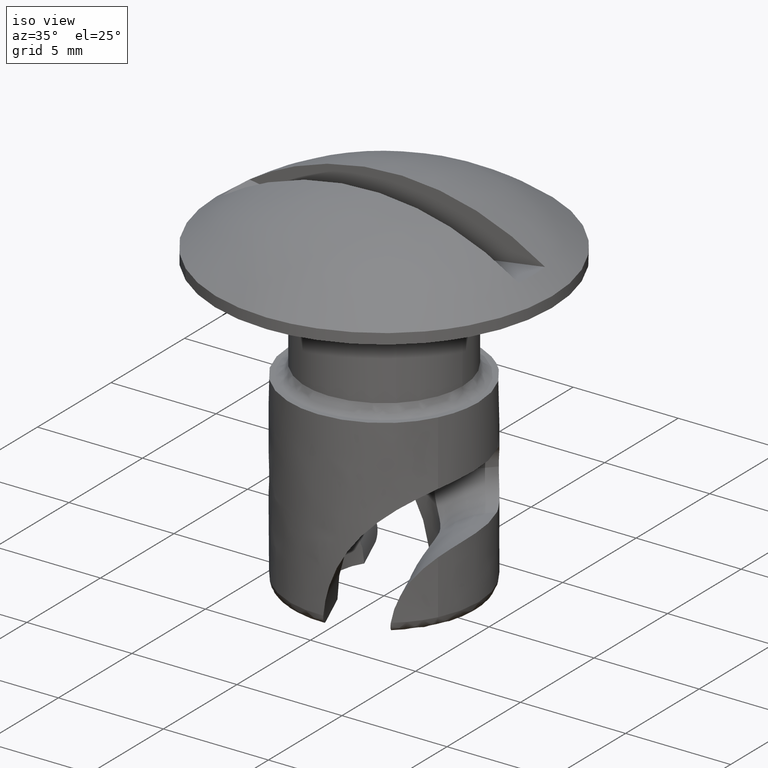
[diagram: clean part render]
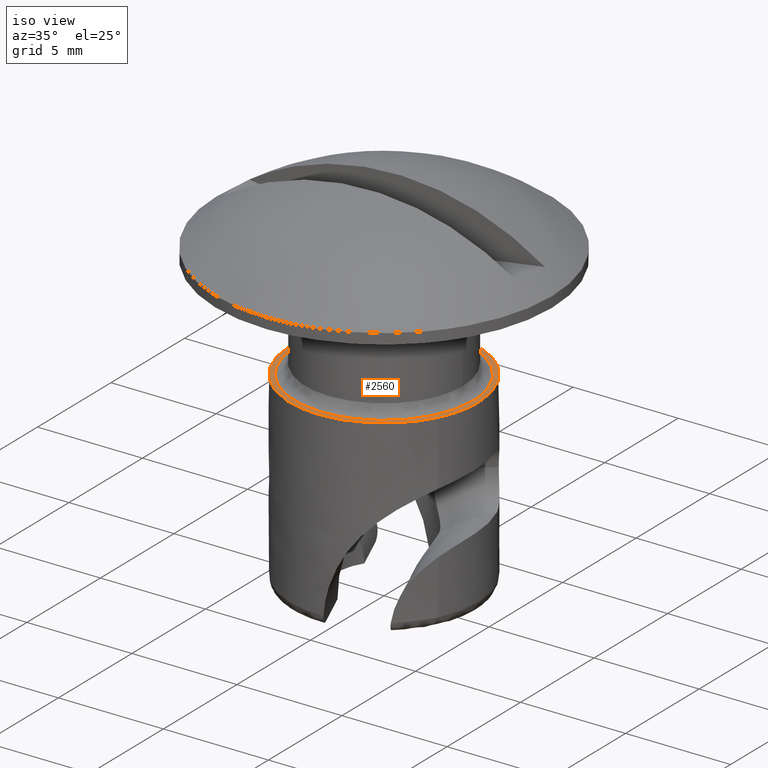
[diagram: same view with one face highlighted and labeled with its STEP entity id]
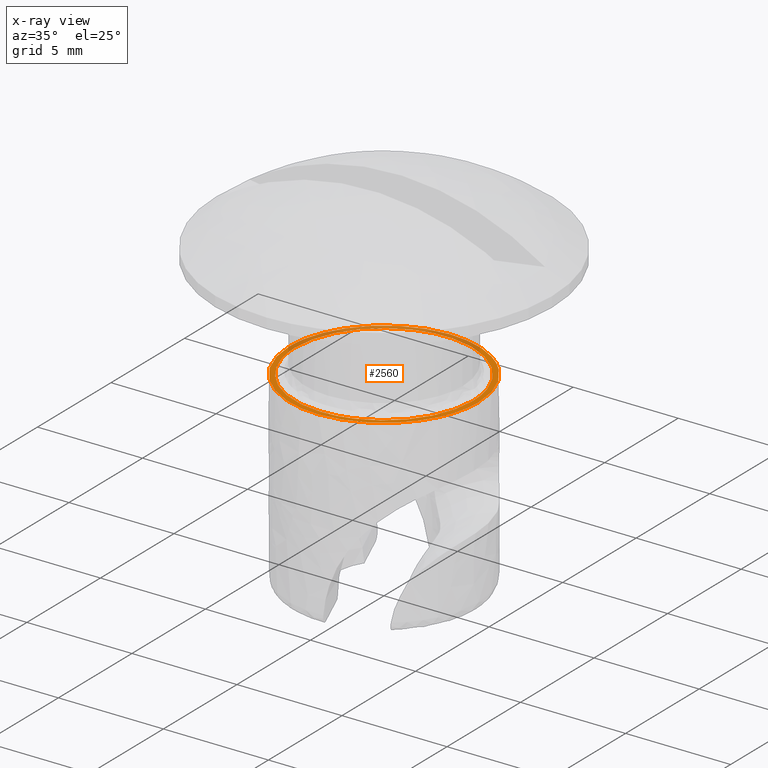
[diagram: x-ray of the same camera — body ghosted, the highlighted face saturated]
A machine part, iso view. The second image highlights one B-rep face of the part: STEP entity #2560.
The next image is the same camera in x-ray: the body ghosted, the highlighted face saturated — about 33% of this face is hidden behind the body in this view.
In plain terms, the highlighted face is a freeform B-spline surface patch.
Its self-contained STEP definition (entity closure, byte-faithful):
#915=CARTESIAN_POINT('',(4.005059613483995,-2.051706084407150,-4.999999999966261));
#916=VERTEX_POINT('',#915);
#922=CARTESIAN_POINT('',(0.000000199531659,-4.499999999999996,-5.0));
#923=VERTEX_POINT('',#922);
#924=CARTESIAN_POINT('',(0.000000199531659,-4.499999999999996,-5.0));
#925=CARTESIAN_POINT('',(0.347225374445360,-4.500084276546153,-4.999999999997077));
#926=CARTESIAN_POINT('',(0.848721989248025,-4.441649528185629,-4.999999999992856));
#927=CARTESIAN_POINT('',(1.504061849735674,-4.251109188553205,-4.999999999987324));
#928=CARTESIAN_POINT('',(2.074996128929918,-4.013541250767503,-4.999999999982569));
#929=CARTESIAN_POINT('',(2.626041094429768,-3.676684473263752,-4.999999999977807));
#930=CARTESIAN_POINT('',(3.097789590667225,-3.276863095574214,-4.999999999974009));
#931=CARTESIAN_POINT('',(3.566165735520965,-2.780476237479936,-4.999999999969860));
#932=CARTESIAN_POINT('',(3.846822333014787,-2.360779214622130,-4.999999999967666));
#933=CARTESIAN_POINT('',(4.005059613483995,-2.051706084407150,-4.999999999966261));
#934=B_SPLINE_CURVE_WITH_KNOTS('',3,(#924,#925,#926,#927,#928,#929,#930,#931,#932,#933),.UNSPECIFIED.,.F.,.U.,(4,1,1,1,1,1,1,4),(2.443718E-009,1.041650422527793,1.504608903684662,2.044726977162392,2.893471900989890,3.433589974468201,3.896548455624979,4.938198875709558),.UNSPECIFIED.);
#935=EDGE_CURVE('',#923,#916,#934,.T.);
#937=CARTESIAN_POINT('',(-4.500000000000000,0.0,-5.0));
#938=VERTEX_POINT('',#937);
#939=CARTESIAN_POINT('',(-4.500000000000000,0.0,-5.0));
#940=CARTESIAN_POINT('',(-4.500052744852380,-0.312936601427019,-5.000000000000004));
#941=CARTESIAN_POINT('',(-4.446967572574513,-0.819126354778439,-4.999999999999996));
#942=CARTESIAN_POINT('',(-4.238053745725908,-1.565165513950329,-4.999999999999992));
#943=CARTESIAN_POINT('',(-3.966683787999966,-2.162472609163638,-5.000000000000030));
#944=CARTESIAN_POINT('',(-3.612937938485601,-2.702549551415971,-4.999999999999961));
#945=CARTESIAN_POINT('',(-3.218257175802253,-3.165819933905433,-5.000000000000020));
#946=CARTESIAN_POINT('',(-2.735509821233976,-3.595341931301139,-4.999999999999965));
#947=CARTESIAN_POINT('',(-2.107516029363350,-4.001171129985579,-5.000000000000009));
#948=CARTESIAN_POINT('',(-1.409793039712561,-4.297749542585641,-5.000000000000018));
#949=CARTESIAN_POINT('',(-0.681082380088882,-4.466050230711910,-4.999999999999872));
#950=CARTESIAN_POINT('',(-0.220891309928308,-4.500010123994557,-5.000000000000269));
#951=CARTESIAN_POINT('',(0.000000199531659,-4.499999999999996,-5.0));
#952=B_SPLINE_CURVE_WITH_KNOTS('',3,(#939,#940,#941,#942,#943,#944,#945,#946,#947,#948,#949,#950,#951),.UNSPECIFIED.,.F.,.U.,(4,1,1,1,1,1,1,1,1,1,4),(0.000000011814667,0.938796935335811,1.518642999229638,2.319384982705726,2.899229292033102,3.451465284928702,4.141751430438495,4.832046372003482,5.688010521611405,6.405919597892757,7.068594671592562),.UNSPECIFIED.);
#953=EDGE_CURVE('',#938,#923,#952,.T.);
#955=CARTESIAN_POINT('',(-0.000000199531739,4.499999999999996,-5.0));
#956=VERTEX_POINT('',#955);
#957=CARTESIAN_POINT('',(-0.000000199531739,4.499999999999996,-5.0));
#958=CARTESIAN_POINT('',(-0.211688213353229,4.500010177044696,-4.999999999999990));
#959=CARTESIAN_POINT('',(-0.607451685980818,4.472020107452479,-5.000000000000002));
#960=CARTESIAN_POINT('',(-1.248787499372582,4.340368469602740,-5.000000000000020));
#961=CARTESIAN_POINT('',(-1.917052802877644,4.096649493631611,-4.999999999999986));
#962=CARTESIAN_POINT('',(-2.524868812569489,3.744873601293480,-5.000000000000010));
#963=CARTESIAN_POINT('',(-3.029954351355916,3.343143368039302,-4.999999999999996));
#964=CARTESIAN_POINT('',(-3.487389435372591,2.874384214716483,-5.000000000000004));
#965=CARTESIAN_POINT('',(-3.859933937925410,2.345405857806554,-4.999999999999999));
#966=CARTESIAN_POINT('',(-4.129303484714418,1.810201257279291,-5.000000000000002));
#967=CARTESIAN_POINT('',(-4.300901137724414,1.352864424080786,-5.0));
#968=CARTESIAN_POINT('',(-4.454649188609076,0.754704700164314,-4.999999999999998));
#969=CARTESIAN_POINT('',(-4.500041618574281,0.294527848747048,-5.000000000000002));
#970=CARTESIAN_POINT('',(-4.500000000000000,0.0,-5.0));
#971=B_SPLINE_CURVE_WITH_KNOTS('',3,(#957,#958,#959,#960,#961,#962,#963,#964,#965,#966,#967,#968,#969,#970),.UNSPECIFIED.,.F.,.U.,(4,1,1,1,1,1,1,1,1,1,1,4),(0.000000011845457,0.635063246838812,1.187302829703095,1.960430862389788,2.761174545929280,3.285798112542863,3.893249229962954,4.721597303099985,5.218610308801991,5.688010340594635,6.185020891511621,7.068594446673442),.UNSPECIFIED.);
#972=EDGE_CURVE('',#956,#938,#971,.T.);
#974=CARTESIAN_POINT('',(2.500424595194246,3.741373601893073,-5.000000000000001));
#975=VERTEX_POINT('',#974);
#976=CARTESIAN_POINT('',(2.500424595194246,3.741373601893073,-5.000000000000001));
#977=CARTESIAN_POINT('',(2.322486277263574,3.860306029726158,-5.000000000000007));
#978=CARTESIAN_POINT('',(1.985678430855152,4.052145977138630,-4.999999999999977));
#979=CARTESIAN_POINT('',(1.422568959151480,4.282917154347513,-5.000000000000018));
#980=CARTESIAN_POINT('',(0.773244013516385,4.454094811418599,-4.999999999999989));
#981=CARTESIAN_POINT('',(0.276163035014724,4.500028800007878,-5.000000000000002));
#982=CARTESIAN_POINT('',(-0.000000199531739,4.499999999999996,-5.0));
#983=B_SPLINE_CURVE_WITH_KNOTS('',3,(#976,#977,#978,#979,#980,#981,#982),.UNSPECIFIED.,.F.,.U.,(4,1,1,1,4),(1.461595E-009,0.642075985834279,1.159880546896528,1.822666639901438,2.651152592515819),.UNSPECIFIED.);
#984=EDGE_CURVE('',#975,#956,#983,.T.);
#1025=CARTESIAN_POINT('',(4.500000000000000,0.0,-5.0));
#1026=VERTEX_POINT('',#1025);
#1027=CARTESIAN_POINT('',(4.500000000000000,0.0,-5.0));
#1028=CARTESIAN_POINT('',(4.500027511256537,0.276090983243606,-4.999999999999996));
#1029=CARTESIAN_POINT('',(4.451150086731166,0.805254149202622,-5.000000000000005));
#1030=CARTESIAN_POINT('',(4.276629083411834,1.439738053019265,-4.999999999999996));
#1031=CARTESIAN_POINT('',(4.050670983071284,1.981736498222369,-4.999999999999998));
#1032=CARTESIAN_POINT('',(3.748811161955717,2.526361339730141,-5.000000000000035));
#1033=CARTESIAN_POINT('',(3.238596753958582,3.168969461709289,-4.999999999999926));
#1034=CARTESIAN_POINT('',(2.768257779461973,3.562434682588982,-5.000000000000062));
#1035=CARTESIAN_POINT('',(2.500424595194246,3.741373601893073,-5.000000000000001));
#1036=B_SPLINE_CURVE_WITH_KNOTS('',3,(#1027,#1028,#1029,#1030,#1031,#1032,#1033,#1034,#1035),.UNSPECIFIED.,.F.,.U.,(4,1,1,1,1,1,4),(3.798870E-009,0.828269644153178,1.587520807169445,1.967144028118829,2.588342905701982,3.451128972759956,4.417444206953123),.UNSPECIFIED.);
#1037=EDGE_CURVE('',#1026,#975,#1036,.T.);
#1039=CARTESIAN_POINT('',(4.005059613483995,-2.051706084407150,-4.999999999966261));
#1040=CARTESIAN_POINT('',(4.141693822407262,-1.785085367113623,-4.999999999970633));
#1041=CARTESIAN_POINT('',(4.308467381420021,-1.359394844061079,-4.999999999977667));
#1042=CARTESIAN_POINT('',(4.464979479499978,-0.665743357350699,-4.999999999989027));
#1043=CARTESIAN_POINT('',(4.500018161141424,-0.255205726777688,-4.999999999995823));
#1044=CARTESIAN_POINT('',(4.500000000000000,0.0,-5.0));
#1045=B_SPLINE_CURVE_WITH_KNOTS('',3,(#1039,#1040,#1041,#1042,#1043,#1044),.UNSPECIFIED.,.F.,.U.,(4,1,1,4),(1.055517E-009,0.898764826641064,1.364789296322766,2.130404407094264),.UNSPECIFIED.);
#1046=EDGE_CURVE('',#916,#1026,#1045,.T.);
#1702=CARTESIAN_POINT('',(-4.250000000000000,0.0,-5.0));
#1703=VERTEX_POINT('',#1702);
#1704=CARTESIAN_POINT('',(0.296366319198403,4.239654113804767,-4.999999999999974));
#1705=VERTEX_POINT('',#1704);
#1706=CARTESIAN_POINT('',(-4.250000000000000,0.0,-5.0));
#1707=CARTESIAN_POINT('',(-4.250003166738484,0.172495977774638,-4.999999999999999));
#1708=CARTESIAN_POINT('',(-4.226205666960578,0.562881466741816,-5.000000000000007));
#1709=CARTESIAN_POINT('',(-4.093253037306240,1.223455228215796,-5.000000000000002));
#1710=CARTESIAN_POINT('',(-3.825985998607060,1.902654141539875,-5.000000000000004));
#1711=CARTESIAN_POINT('',(-3.475973364520235,2.467954309001312,-5.000000000000006));
#1712=CARTESIAN_POINT('',(-3.146508422299346,2.868007755362138,-4.999999999999998));
#1713=CARTESIAN_POINT('',(-2.829682245249817,3.181020699113390,-5.000000000000020));
#1714=CARTESIAN_POINT('',(-2.489456031483499,3.454357184059617,-4.999999999999957));
#1715=CARTESIAN_POINT('',(-2.091746165215057,3.709874365962900,-5.0));
#1716=CARTESIAN_POINT('',(-1.626940463222387,3.939538763406722,-5.000000000000101));
#1717=CARTESIAN_POINT('',(-1.049569971314393,4.135734885857229,-4.999999999999952));
#1718=CARTESIAN_POINT('',(-0.394527154569411,4.250683826478534,-4.999999999999875));
#1719=CARTESIAN_POINT('',(0.069951947958903,4.255496227747071,-5.000000000000158));
#1720=CARTESIAN_POINT('',(0.296366319198403,4.239654113804767,-4.999999999999974));
#1721=B_SPLINE_CURVE_WITH_KNOTS('',3,(#1706,#1707,#1708,#1709,#1710,#1711,#1712,#1713,#1714,#1715,#1716,#1717,#1718,#1719,#1720),.UNSPECIFIED.,.F.,.U.,(4,1,1,1,1,1,1,1,1,1,1,1,4),(0.000000013296438,0.517489321588073,1.171159591339486,2.015490765132514,2.696401955782639,3.159423084961596,3.567957108241127,4.030977832784815,4.466759400014460,4.984249902215509,5.583451143049946,6.291600539872935,6.972503357896852),.UNSPECIFIED.);
#1722=EDGE_CURVE('',#1703,#1705,#1721,.T.);
#1724=CARTESIAN_POINT('',(-0.026695261213592,-4.249916159529354,-5.0));
#1725=VERTEX_POINT('',#1724);
#1726=CARTESIAN_POINT('',(-0.026695261213592,-4.249916159529354,-5.0));
#1727=CARTESIAN_POINT('',(-0.243134769473014,-4.248567788034047,-5.000000000000006));
#1728=CARTESIAN_POINT('',(-0.632536311611364,-4.216283202748135,-4.999999999999991));
#1729=CARTESIAN_POINT('',(-1.225057474267935,-4.083673427310081,-5.000000000000012));
#1730=CARTESIAN_POINT('',(-1.826951621053532,-3.858732307991630,-4.999999999999989));
#1731=CARTESIAN_POINT('',(-2.391795167813126,-3.533288785691017,-5.000000000000046));
#1732=CARTESIAN_POINT('',(-2.879266032931708,-3.142706638193653,-4.999999999999956));
#1733=CARTESIAN_POINT('',(-3.233417813094641,-2.773001028050854,-5.000000000000036));
#1734=CARTESIAN_POINT('',(-3.557725461741084,-2.344457856856240,-4.999999999999990));
#1735=CARTESIAN_POINT('',(-3.801628701026893,-1.923928125223832,-5.000000000000014));
#1736=CARTESIAN_POINT('',(-4.005757171707089,-1.445570885108458,-5.000000000000029));
#1737=CARTESIAN_POINT('',(-4.191393410283189,-0.831120818416883,-4.999999999999891));
#1738=CARTESIAN_POINT('',(-4.250068858539393,-0.329003210333784,-5.000000000000155));
#1739=CARTESIAN_POINT('',(-4.250000000000000,0.0,-5.0));
#1740=B_SPLINE_CURVE_WITH_KNOTS('',3,(#1726,#1727,#1728,#1729,#1730,#1731,#1732,#1733,#1734,#1735,#1736,#1737,#1738,#1739),.UNSPECIFIED.,.F.,.U.,(4,1,1,1,1,1,1,1,1,1,1,4),(0.000000012229784,0.649330869926843,1.168802082458000,1.818141236102988,2.571374534442245,3.116819456278507,3.688221372743416,4.103800774583700,4.727163663889496,5.142740422869924,5.662210379297060,6.649199299657806),.UNSPECIFIED.);
#1741=EDGE_CURVE('',#1725,#1703,#1740,.T.);
#1743=CARTESIAN_POINT('',(4.249664437216422,-0.053405669574692,-4.999999999999975));
#1744=VERTEX_POINT('',#1743);
#1745=CARTESIAN_POINT('',(4.249664437216422,-0.053405669574692,-4.999999999999975));
#1746=CARTESIAN_POINT('',(4.245408365035050,-0.399701061278983,-4.999999999999961));
#1747=CARTESIAN_POINT('',(4.174927328361625,-0.918275966051217,-5.000000000000008));
#1748=CARTESIAN_POINT('',(3.963270239653861,-1.560888640315838,-4.999999999999965));
#1749=CARTESIAN_POINT('',(3.718870519368157,-2.087932205173774,-4.999999999999982));
#1750=CARTESIAN_POINT('',(3.391268381607970,-2.590279833570198,-5.000000000000019));
#1751=CARTESIAN_POINT('',(3.001947283929997,-3.022060550025303,-4.999999999999988));
#1752=CARTESIAN_POINT('',(2.624294301232625,-3.353925919942516,-5.000000000000055));
#1753=CARTESIAN_POINT('',(2.134086474849049,-3.697307759109225,-4.999999999999870));
#1754=CARTESIAN_POINT('',(1.491261357036532,-4.007044811101777,-5.000000000000080));
#1755=CARTESIAN_POINT('',(0.726789818006210,-4.210027997656952,-4.999999999999960));
#1756=CARTESIAN_POINT('',(0.224374813935908,-4.251511430512932,-5.000000000000006));
#1757=CARTESIAN_POINT('',(-0.026695261213592,-4.249916159529354,-5.0));
#1758=B_SPLINE_CURVE_WITH_KNOTS('',3,(#1745,#1746,#1747,#1748,#1749,#1750,#1751,#1752,#1753,#1754,#1755,#1756,#1757),.UNSPECIFIED.,.F.,.U.,(4,1,1,1,1,1,1,1,1,1,4),(0.000000012227463,1.038933587336063,1.558402065873224,2.025923780269998,2.779152086597629,3.350557371056450,3.766132954995265,4.285602408304729,5.142727891323879,5.895958955013391,6.649183097258976),.UNSPECIFIED.);
#1759=EDGE_CURVE('',#1744,#1725,#1758,.T.);
#1809=CARTESIAN_POINT('',(4.250000000000000,0.0,-5.0));
#1810=VERTEX_POINT('',#1809);
#1811=CARTESIAN_POINT('',(0.296366319198403,4.239654113804767,-4.999999999999974));
#1812=CARTESIAN_POINT('',(0.520093618960283,4.224030059498113,-4.999999999999986));
#1813=CARTESIAN_POINT('',(0.866173324726544,4.172072757796606,-4.999999999999957));
#1814=CARTESIAN_POINT('',(1.402748440442542,4.022376356166970,-4.999999999999989));
#1815=CARTESIAN_POINT('',(1.880482724368121,3.826374768492631,-4.999999999999992));
#1816=CARTESIAN_POINT('',(2.333685899122372,3.562569728113655,-4.999999999999979));
#1817=CARTESIAN_POINT('',(2.747666500169925,3.255289452581981,-4.999999999999988));
#1818=CARTESIAN_POINT('',(3.153676388855883,2.872651594881392,-5.0));
#1819=CARTESIAN_POINT('',(3.539532207503030,2.381068520694745,-4.999999999999995));
#1820=CARTESIAN_POINT('',(3.831219223486486,1.866817533650360,-4.999999999999999));
#1821=CARTESIAN_POINT('',(4.044747182112263,1.342849276697200,-4.999999999999996));
#1822=CARTESIAN_POINT('',(4.206217937531074,0.730949073405965,-5.000000000000006));
#1823=CARTESIAN_POINT('',(4.250028677360605,0.265803344031254,-4.999999999999997));
#1824=CARTESIAN_POINT('',(4.250000000000000,0.0,-5.0));
#1825=B_SPLINE_CURVE_WITH_KNOTS('',3,(#1811,#1812,#1813,#1814,#1815,#1816,#1817,#1818,#1819,#1820,#1821,#1822,#1823,#1824),.UNSPECIFIED.,.F.,.U.,(4,1,1,1,1,1,1,1,1,1,1,4),(0.000000011090878,0.672814315428936,1.046599258088805,1.669579107965189,2.217800344092020,2.616506204350750,3.214554881236991,3.887375939360959,4.485435741319392,4.983818682812070,5.581879950735566,6.379286488928933),.UNSPECIFIED.);
#1826=EDGE_CURVE('',#1705,#1810,#1825,.T.);
#1833=CARTESIAN_POINT('',(4.250000000000000,0.0,-5.0));
#1834=CARTESIAN_POINT('',(4.249664437216422,-0.053405669574692,-4.999999999999975));
#1835=QUASI_UNIFORM_CURVE('',1,(#1833,#1834),.UNSPECIFIED.,.F.,.U.);
#1836=EDGE_CURVE('',#1810,#1744,#1835,.T.);
#2540=CARTESIAN_POINT('',(-4.949549982556253,-4.949549982556248,-5.0));
#2541=CARTESIAN_POINT('',(4.949550223955065,-4.949549982556248,-5.0));
#2542=CARTESIAN_POINT('',(-4.949549982556253,4.949550223955059,-5.0));
#2543=CARTESIAN_POINT('',(4.949550223955065,4.949550223955059,-5.0));
#2544=B_SPLINE_SURFACE_WITH_KNOTS('',1,1,((#2540,#2542),(#2541,#2543)),.UNSPECIFIED.,.F.,.F.,.U.,(2,2),(2,2),(0.0,9.899100206511317),(0.0,9.899100206511307),.UNSPECIFIED.);
#2545=ORIENTED_EDGE('',*,*,#1037,.T.);
#2546=ORIENTED_EDGE('',*,*,#984,.T.);
#2547=ORIENTED_EDGE('',*,*,#972,.T.);
#2548=ORIENTED_EDGE('',*,*,#953,.T.);
#2549=ORIENTED_EDGE('',*,*,#935,.T.);
#2550=ORIENTED_EDGE('',*,*,#1046,.T.);
#2551=EDGE_LOOP('',(#2545,#2546,#2547,#2548,#2549,#2550));
#2552=FACE_OUTER_BOUND('',#2551,.T.);
#2553=ORIENTED_EDGE('',*,*,#1836,.T.);
#2554=ORIENTED_EDGE('',*,*,#1759,.T.);
#2555=ORIENTED_EDGE('',*,*,#1741,.T.);
#2556=ORIENTED_EDGE('',*,*,#1722,.T.);
#2557=ORIENTED_EDGE('',*,*,#1826,.T.);
#2558=EDGE_LOOP('',(#2553,#2554,#2555,#2556,#2557));
#2559=FACE_BOUND('',#2558,.T.);
#2560=ADVANCED_FACE('',(#2552,#2559),#2544,.T.);